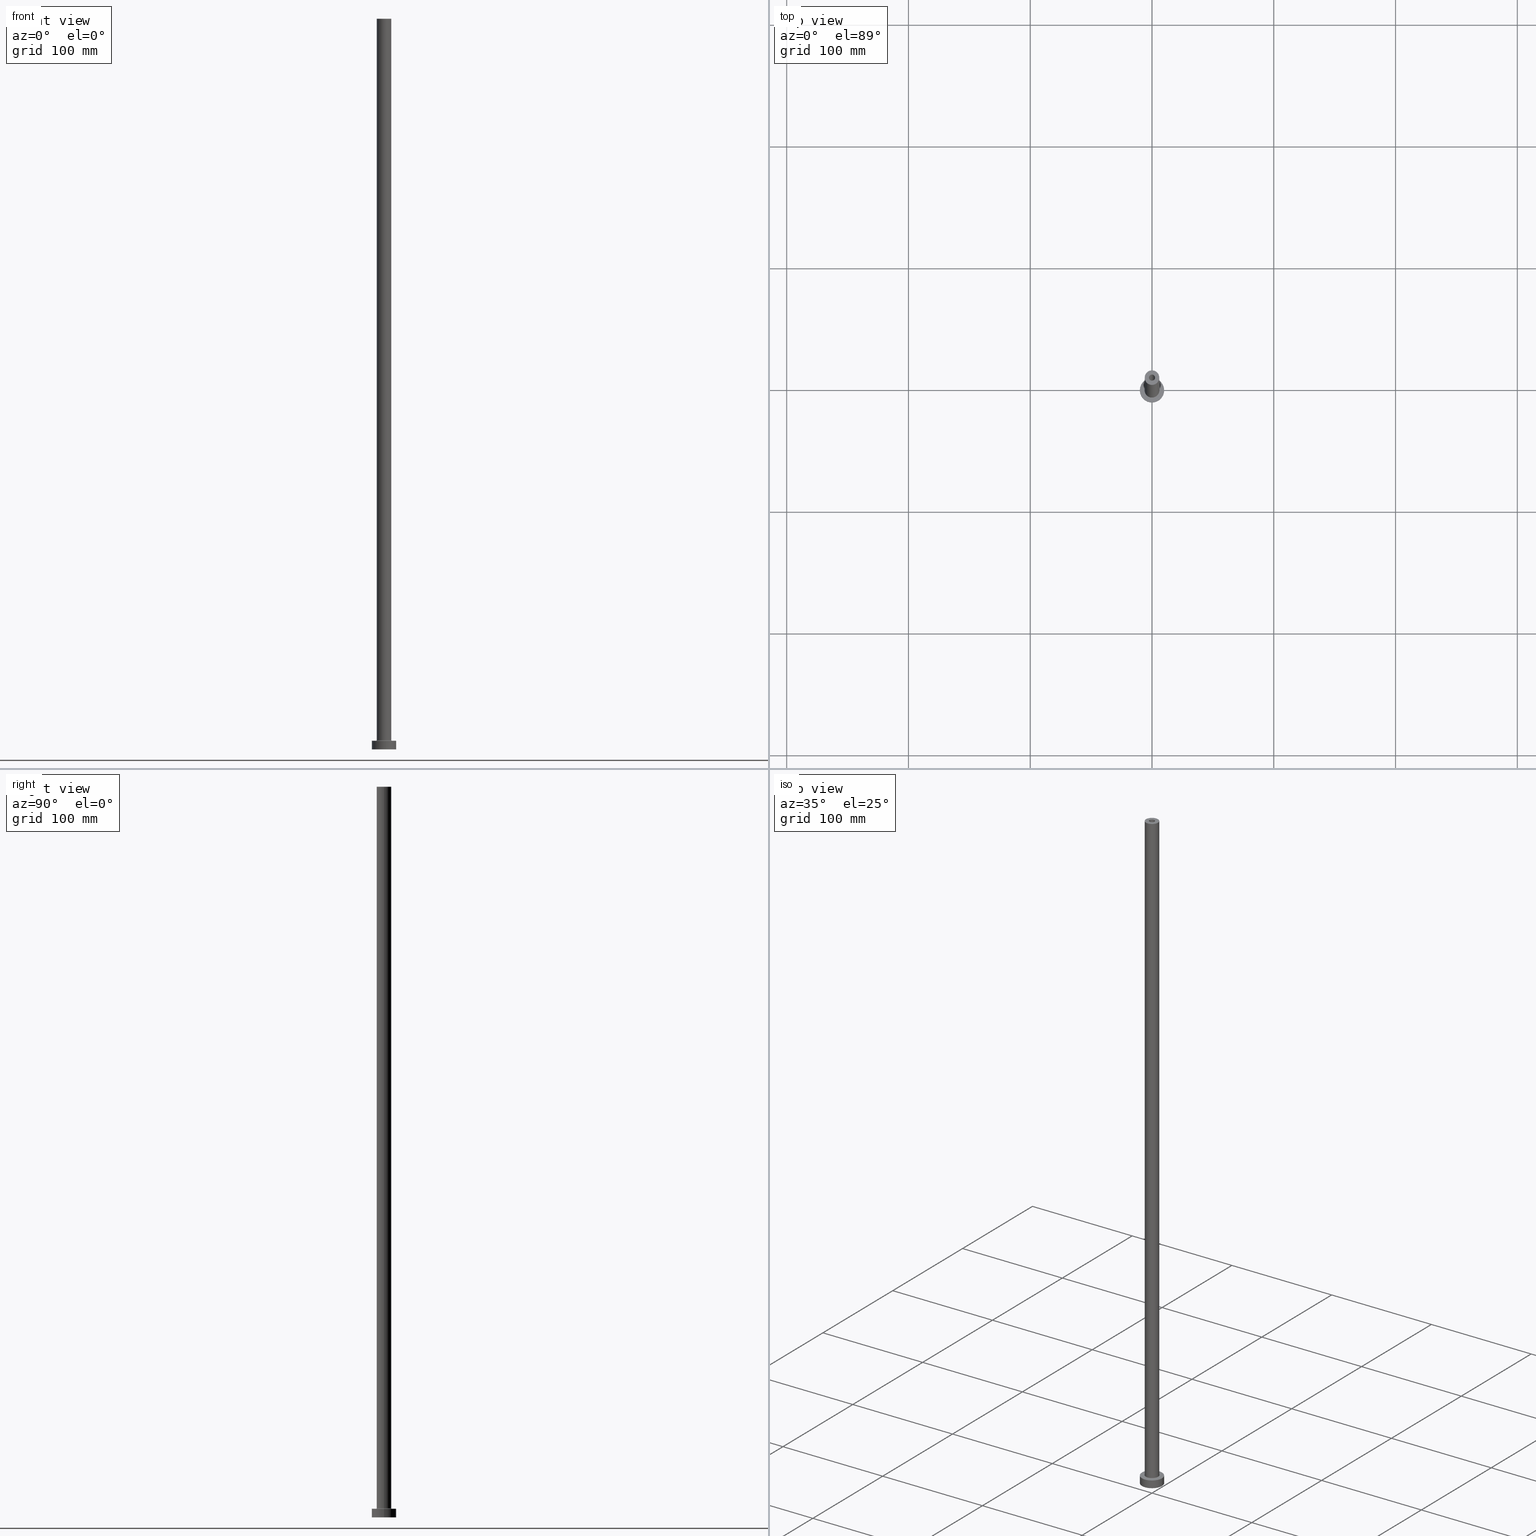
[diagram: canonical four-view strip — front | top / right | iso, engineering-drawing reading convention]
A machine part, canonical four-view strip (front | top / right | iso — engineering-drawing reading convention). The complete STEP part file that produces these views, byte-faithful:
ISO-10303-21;
HEADER;
FILE_DESCRIPTION (( 'STEP AP203' ),
    '1' );
FILE_NAME ('65c8.STEP',
    '2023-02-13T16:44:34',
    ( '' ),
    ( '' ),
    'SwSTEP 2.0',
    'SolidWorks 2019',
    '' );
FILE_SCHEMA (( 'CONFIG_CONTROL_DESIGN' ));
ENDSEC;

DATA;
#1 = FACE_OUTER_BOUND ( 'NONE', #85, .T. ) ;
#2 = LINE ( 'NONE', #327, #193 ) ;
#3 = APPROVAL_PERSON_ORGANIZATION ( #305, #153, #448 ) ;
#4 = DIRECTION ( 'NONE',  ( 0.000000000000000000, 0.000000000000000000, 1.000000000000000000 ) ) ;
#5 = FACE_OUTER_BOUND ( 'NONE', #451, .T. ) ;
#6 = CARTESIAN_POINT ( 'NONE',  ( 2.500000000000000000, 3.061616997868383141E-16, 600.0000000000000000 ) ) ;
#7 = DIRECTION ( 'NONE',  ( 1.000000000000000000, 0.000000000000000000, -0.000000000000000000 ) ) ;
#8 = EDGE_LOOP ( 'NONE', ( #314, #12 ) ) ;
#9 = DIRECTION ( 'NONE',  ( 0.000000000000000000, 0.000000000000000000, 1.000000000000000000 ) ) ;
#10 = EDGE_CURVE ( 'NONE', #18, #82, #68, .T. ) ;
#11 = DATE_AND_TIME ( #336, #47 ) ;
#12 = ORIENTED_EDGE ( 'NONE', *, *, #187, .F. ) ;
#13 = FACE_BOUND ( 'NONE', #383, .T. ) ;
#14 = EDGE_LOOP ( 'NONE', ( #346, #125, #176, #372 ) ) ;
#15 = VECTOR ( 'NONE', #425, 1000.000000000000000 ) ;
#16 = AXIS2_PLACEMENT_3D ( 'NONE', #81, #368, #272 ) ;
#17 = FACE_OUTER_BOUND ( 'NONE', #219, .T. ) ;
#18 = VERTEX_POINT ( 'NONE', #136 ) ;
#19 = ADVANCED_FACE ( 'NONE', ( #144 ), #415, .F. ) ;
#20 = CARTESIAN_POINT ( 'NONE',  ( -6.000000000000000888, 0.000000000000000000, 600.0000000000000000 ) ) ;
#21 = PERSON_AND_ORGANIZATION ( #151, #234 ) ;
#22 = DIRECTION ( 'NONE',  ( -1.000000000000000000, 0.000000000000000000, 0.000000000000000000 ) ) ;
#23 = CARTESIAN_POINT ( 'NONE',  ( 0.000000000000000000, 0.000000000000000000, 600.0000000000000000 ) ) ;
#24 = AXIS2_PLACEMENT_3D ( 'NONE', #253, #388, #56 ) ;
#25 = COORDINATED_UNIVERSAL_TIME_OFFSET ( 1, 0, .AHEAD. ) ;
#26 = VERTEX_POINT ( 'NONE', #350 ) ;
#27 = ADVANCED_FACE ( 'NONE', ( #356 ), #209, .T. ) ;
#28 = CALENDAR_DATE ( 2023, 13, 2 ) ;
#29 = ORIENTED_EDGE ( 'NONE', *, *, #340, .T. ) ;
#30 = CIRCLE ( 'NONE', #227, 2.500000000000000000 ) ;
#31 = DIRECTION ( 'NONE',  ( 1.000000000000000000, 0.000000000000000000, 0.000000000000000000 ) ) ;
#32 = ORIENTED_EDGE ( 'NONE', *, *, #179, .F. ) ;
#33 = ADVANCED_FACE ( 'NONE', ( #98 ), #59, .F. ) ;
#34 = DATE_AND_TIME ( #291, #259 ) ;
#35 = CARTESIAN_POINT ( 'NONE',  ( 0.000000000000000000, 0.000000000000000000, 7.499999999999951150 ) ) ;
#36 = MANIFOLD_SOLID_BREP ( 'Odebrat vysunut�m4', #375 ) ;
#37 = CARTESIAN_POINT ( 'NONE',  ( 6.000000000000000888, 7.347880794884120722E-16, 600.0000000000000000 ) ) ;
#38 = AXIS2_PLACEMENT_3D ( 'NONE', #110, #4, #42 ) ;
#39 = CARTESIAN_POINT ( 'NONE',  ( -2.500000000000000000, 0.000000000000000000, 554.9999999999998863 ) ) ;
#40 = EDGE_CURVE ( 'NONE', #140, #130, #132, .T. ) ;
#41 = SECURITY_CLASSIFICATION ( '', '', #120 ) ;
#42 = DIRECTION ( 'NONE',  ( 1.000000000000000000, 0.000000000000000000, 0.000000000000000000 ) ) ;
#43 = CARTESIAN_POINT ( 'NONE',  ( 0.000000000000000000, 0.000000000000000000, 7.499999999999951150 ) ) ;
#44 = CIRCLE ( 'NONE', #404, 2.500000000000000000 ) ;
#45 = FACE_OUTER_BOUND ( 'NONE', #256, .T. ) ;
#46 = EDGE_CURVE ( 'NONE', #411, #183, #260, .T. ) ;
#47 = LOCAL_TIME ( 17, 44, 34.00000000000000000, #122 ) ;
#48 = DIRECTION ( 'NONE',  ( -1.000000000000000000, 0.000000000000000000, 0.000000000000000000 ) ) ;
#49 = ORIENTED_EDGE ( 'NONE', *, *, #10, .T. ) ;
#50 = DIRECTION ( 'NONE',  ( 1.000000000000000000, 0.000000000000000000, -0.000000000000000000 ) ) ;
#51 = CARTESIAN_POINT ( 'NONE',  ( 0.000000000000000000, 0.000000000000000000, 600.0000000000000000 ) ) ;
#52 = ORIENTED_EDGE ( 'NONE', *, *, #407, .F. ) ;
#53 = TOROIDAL_SURFACE ( 'NONE', #201, 6.500000000000000888, 0.5000000000000000000 ) ;
#54 = EDGE_CURVE ( 'NONE', #161, #165, #2, .T. ) ;
#55 = CYLINDRICAL_SURFACE ( 'NONE', #114, 10.00000000000000000 ) ;
#56 = DIRECTION ( 'NONE',  ( -1.000000000000000000, 0.000000000000000000, 0.000000000000000000 ) ) ;
#57 = ORIENTED_EDGE ( 'NONE', *, *, #187, .T. ) ;
#58 = CYLINDRICAL_SURFACE ( 'NONE', #24, 2.649999999999999911 ) ;
#59 = CYLINDRICAL_SURFACE ( 'NONE', #102, 2.500000000000000000 ) ;
#60 = CIRCLE ( 'NONE', #301, 6.000000000000000888 ) ;
#61 = PRODUCT_RELATED_PRODUCT_CATEGORY ( 'detail', '', ( #108 ) ) ;
#62 = EDGE_LOOP ( 'NONE', ( #424, #306, #420, #32 ) ) ;
#63 =( LENGTH_UNIT ( ) NAMED_UNIT ( * ) SI_UNIT ( .MILLI., .METRE. ) );
#64 = ORIENTED_EDGE ( 'NONE', *, *, #46, .F. ) ;
#65 = DIRECTION ( 'NONE',  ( 1.000000000000000000, 0.000000000000000000, 0.000000000000000000 ) ) ;
#66 = ORIENTED_EDGE ( 'NONE', *, *, #126, .F. ) ;
#67 = EDGE_CURVE ( 'NONE', #183, #26, #295, .T. ) ;
#68 = CIRCLE ( 'NONE', #390, 6.500000000000000888 ) ;
#69 = APPROVAL_ROLE ( '' ) ;
#70 = DIRECTION ( 'NONE',  ( 0.000000000000000000, 0.000000000000000000, 1.000000000000000000 ) ) ;
#71 = LOCAL_TIME ( 17, 44, 34.00000000000000000, #221 ) ;
#72 = CARTESIAN_POINT ( 'NONE',  ( 0.000000000000000000, 0.000000000000000000, 600.0000000000000000 ) ) ;
#73 = FACE_OUTER_BOUND ( 'NONE', #148, .T. ) ;
#74 = AXIS2_PLACEMENT_3D ( 'NONE', #397, #77, #431 ) ;
#75 = AXIS2_PLACEMENT_3D ( 'NONE', #197, #343, #274 ) ;
#76 = ADVANCED_FACE ( 'NONE', ( #1 ), #430, .F. ) ;
#77 = DIRECTION ( 'NONE',  ( 0.000000000000000000, 0.000000000000000000, 1.000000000000000000 ) ) ;
#78 = PLANE ( 'NONE',  #412 ) ;
#79 = CARTESIAN_POINT ( 'NONE',  ( 0.000000000000000000, 0.000000000000000000, 600.0000000000000000 ) ) ;
#80 = VECTOR ( 'NONE', #222, 1000.000000000000000 ) ;
#81 = CARTESIAN_POINT ( 'NONE',  ( 0.000000000000000000, 0.000000000000000000, 0.000000000000000000 ) ) ;
#82 = VERTEX_POINT ( 'NONE', #392 ) ;
#83 = PRODUCT_DEFINITION_FORMATION_WITH_SPECIFIED_SOURCE ( 'LIBOVOLN�', '', #108, .NOT_KNOWN. ) ;
#84 = CARTESIAN_POINT ( 'NONE',  ( 0.000000000000000000, 0.000000000000000000, 7.000000000000000000 ) ) ;
#85 = EDGE_LOOP ( 'NONE', ( #311, #284, #128, #88 ) ) ;
#86 = ADVANCED_FACE ( 'NONE', ( #5 ), #53, .F. ) ;
#87 = CYLINDRICAL_SURFACE ( 'NONE', #398, 6.000000000000000888 ) ;
#88 = ORIENTED_EDGE ( 'NONE', *, *, #414, .F. ) ;
#89 = CARTESIAN_POINT ( 'NONE',  ( 10.00000000000000000, 1.224646799147353256E-15, 0.000000000000000000 ) ) ;
#90 = VECTOR ( 'NONE', #300, 1000.000000000000000 ) ;
#91 = PERSON_AND_ORGANIZATION_ROLE ( 'creator' ) ;
#92 = ORIENTED_EDGE ( 'NONE', *, *, #263, .T. ) ;
#93 =( NAMED_UNIT ( * ) PLANE_ANGLE_UNIT ( ) SI_UNIT ( $, .RADIAN. ) );
#94 = CIRCLE ( 'NONE', #223, 10.00000000000000000 ) ;
#95 = DESIGN_CONTEXT ( 'detailed design', #262, 'design' ) ;
#96 = COORDINATED_UNIVERSAL_TIME_OFFSET ( 1, 0, .AHEAD. ) ;
#97 = ORIENTED_EDGE ( 'NONE', *, *, #142, .F. ) ;
#98 = FACE_OUTER_BOUND ( 'NONE', #101, .T. ) ;
#99 = EDGE_CURVE ( 'NONE', #269, #26, #326, .T. ) ;
#100 = DIRECTION ( 'NONE',  ( 1.000000000000000000, 0.000000000000000000, 0.000000000000000000 ) ) ;
#101 = EDGE_LOOP ( 'NONE', ( #92, #252, #290, #64 ) ) ;
#102 = AXIS2_PLACEMENT_3D ( 'NONE', #23, #330, #186 ) ;
#103 = APPROVAL_DATE_TIME ( #177, #395 ) ;
#104 = CARTESIAN_POINT ( 'NONE',  ( 0.000000000000000000, 0.000000000000000000, 7.000000000000000000 ) ) ;
#105 = EDGE_CURVE ( 'NONE', #165, #374, #239, .T. ) ;
#106 = ORIENTED_EDGE ( 'NONE', *, *, #354, .F. ) ;
#107 = DATE_AND_TIME ( #423, #71 ) ;
#108 = PRODUCT ( '65c8', '65c8', '', ( #251 ) ) ;
#109 = DIRECTION ( 'NONE',  ( -0.000000000000000000, -0.000000000000000000, -1.000000000000000000 ) ) ;
#110 = CARTESIAN_POINT ( 'NONE',  ( 0.000000000000000000, 0.000000000000000000, 554.9999999999998863 ) ) ;
#111 = CARTESIAN_POINT ( 'NONE',  ( -2.649999999999999911, 0.000000000000000000, 0.000000000000000000 ) ) ;
#112 = EDGE_CURVE ( 'NONE', #130, #352, #189, .T. ) ;
#113 = CARTESIAN_POINT ( 'NONE',  ( -2.649999999999999911, 0.000000000000000000, 554.9999999999998863 ) ) ;
#114 = AXIS2_PLACEMENT_3D ( 'NONE', #304, #121, #48 ) ;
#115 = FACE_BOUND ( 'NONE', #441, .T. ) ;
#116 = ADVANCED_BREP_SHAPE_REPRESENTATION ( '65c8', ( #36, #280 ), #159 ) ;
#117 = CIRCLE ( 'NONE', #184, 10.00000000000000000 ) ;
#118 = DIRECTION ( 'NONE',  ( 1.000000000000000000, 0.000000000000000000, 0.000000000000000000 ) ) ;
#119 = CC_DESIGN_PERSON_AND_ORGANIZATION_ASSIGNMENT ( #21, #170, ( #83 ) ) ;
#120 = SECURITY_CLASSIFICATION_LEVEL ( 'unclassified' ) ;
#121 = DIRECTION ( 'NONE',  ( -0.000000000000000000, -0.000000000000000000, -1.000000000000000000 ) ) ;
#122 = COORDINATED_UNIVERSAL_TIME_OFFSET ( 1, 0, .AHEAD. ) ;
#123 = FACE_BOUND ( 'NONE', #334, .T. ) ;
#124 = AXIS2_PLACEMENT_3D ( 'NONE', #84, #236, #401 ) ;
#125 = ORIENTED_EDGE ( 'NONE', *, *, #418, .F. ) ;
#126 = EDGE_CURVE ( 'NONE', #26, #183, #30, .T. ) ;
#127 = DIRECTION ( 'NONE',  ( 1.224646799147353207E-16, 1.000000000000000000, -0.000000000000000000 ) ) ;
#128 = ORIENTED_EDGE ( 'NONE', *, *, #386, .F. ) ;
#129 = DIRECTION ( 'NONE',  ( -1.000000000000000000, 0.000000000000000000, 0.000000000000000000 ) ) ;
#130 = VERTEX_POINT ( 'NONE', #363 ) ;
#131 = DIRECTION ( 'NONE',  ( -0.000000000000000000, -0.000000000000000000, -1.000000000000000000 ) ) ;
#132 = CIRCLE ( 'NONE', #347, 2.649999999999999911 ) ;
#133 = ORIENTED_EDGE ( 'NONE', *, *, #426, .F. ) ;
#134 = AXIS2_PLACEMENT_3D ( 'NONE', #338, #335, #341 ) ;
#135 = DIRECTION ( 'NONE',  ( 0.000000000000000000, 0.000000000000000000, 1.000000000000000000 ) ) ;
#136 = CARTESIAN_POINT ( 'NONE',  ( -6.500000000000000888, 7.960204194457796463E-16, 6.999999999999975131 ) ) ;
#137 = EDGE_CURVE ( 'NONE', #161, #198, #60, .T. ) ;
#138 = APPROVAL_ROLE ( '' ) ;
#139 = ORIENTED_EDGE ( 'NONE', *, *, #354, .T. ) ;
#140 = VERTEX_POINT ( 'NONE', #113 ) ;
#141 = AXIS2_PLACEMENT_3D ( 'NONE', #43, #155, #192 ) ;
#142 = EDGE_CURVE ( 'NONE', #417, #454, #294, .T. ) ;
#143 = DIRECTION ( 'NONE',  ( -0.000000000000000000, -0.000000000000000000, -1.000000000000000000 ) ) ;
#144 = FACE_OUTER_BOUND ( 'NONE', #211, .T. ) ;
#145 = CIRCLE ( 'NONE', #432, 6.000000000000000888 ) ;
#146 = PRODUCT_DEFINITION_SHAPE ( 'NONE', 'NONE',  #235 ) ;
#147 = COORDINATED_UNIVERSAL_TIME_OFFSET ( 1, 0, .AHEAD. ) ;
#148 = EDGE_LOOP ( 'NONE', ( #246, #178 ) ) ;
#149 = DIRECTION ( 'NONE',  ( 0.000000000000000000, 0.000000000000000000, 1.000000000000000000 ) ) ;
#150 = CIRCLE ( 'NONE', #74, 2.649999999999999911 ) ;
#151 = PERSON ( 'NEUR�EN�', 'NEUR�EN�', 'NEUR�EN�', ('NEUR�EN�'), ('NEUR�EN�'), ('NEUR�EN�') ) ;
#152 = DIRECTION ( 'NONE',  ( 1.000000000000000000, 0.000000000000000000, 0.000000000000000000 ) ) ;
#153 = APPROVAL ( #208, 'NEUR�EN�' ) ;
#154 = CIRCLE ( 'NONE', #369, 6.500000000000000888 ) ;
#155 = DIRECTION ( 'NONE',  ( 0.000000000000000000, 0.000000000000000000, 1.000000000000000000 ) ) ;
#156 = CARTESIAN_POINT ( 'NONE',  ( 0.000000000000000000, 0.000000000000000000, 554.9999999999998863 ) ) ;
#157 = ADVANCED_FACE ( 'NONE', ( #264, #73 ), #230, .T. ) ;
#158 = DIRECTION ( 'NONE',  ( 1.000000000000000000, 0.000000000000000000, 0.000000000000000000 ) ) ;
#159 =( GEOMETRIC_REPRESENTATION_CONTEXT ( 3 ) GLOBAL_UNCERTAINTY_ASSIGNED_CONTEXT ( ( #278 ) ) GLOBAL_UNIT_ASSIGNED_CONTEXT ( ( #63, #93, #382 ) ) REPRESENTATION_CONTEXT ( 'NONE', 'WORKASPACE' ) );
#160 = LINE ( 'NONE', #237, #447 ) ;
#161 = VERTEX_POINT ( 'NONE', #37 ) ;
#162 = CARTESIAN_POINT ( 'NONE',  ( 0.000000000000000000, 0.000000000000000000, 554.9999999999998863 ) ) ;
#163 = DATE_TIME_ROLE ( 'classification_date' ) ;
#164 = DIRECTION ( 'NONE',  ( 1.000000000000000000, 0.000000000000000000, 0.000000000000000000 ) ) ;
#165 = VERTEX_POINT ( 'NONE', #298 ) ;
#166 = AXIS2_PLACEMENT_3D ( 'NONE', #210, #216, #100 ) ;
#167 = DIRECTION ( 'NONE',  ( -0.000000000000000000, -0.000000000000000000, -1.000000000000000000 ) ) ;
#168 = VERTEX_POINT ( 'NONE', #111 ) ;
#169 = DIRECTION ( 'NONE',  ( 0.000000000000000000, 0.000000000000000000, 1.000000000000000000 ) ) ;
#170 = PERSON_AND_ORGANIZATION_ROLE ( 'design_supplier' ) ;
#171 = ORIENTED_EDGE ( 'NONE', *, *, #340, .F. ) ;
#172 = AXIS2_PLACEMENT_3D ( 'NONE', #72, #225, #358 ) ;
#173 = SHAPE_DEFINITION_REPRESENTATION ( #146, #116 ) ;
#174 = ORIENTED_EDGE ( 'NONE', *, *, #292, .F. ) ;
#175 = CIRCLE ( 'NONE', #406, 0.5000000000000004441 ) ;
#176 = ORIENTED_EDGE ( 'NONE', *, *, #292, .T. ) ;
#177 = DATE_AND_TIME ( #28, #243 ) ;
#178 = ORIENTED_EDGE ( 'NONE', *, *, #137, .T. ) ;
#179 = EDGE_CURVE ( 'NONE', #140, #168, #261, .T. ) ;
#180 = CARTESIAN_POINT ( 'NONE',  ( -6.000000000000000888, 0.000000000000000000, 7.499999999999951150 ) ) ;
#181 = DIRECTION ( 'NONE',  ( -0.000000000000000000, -0.000000000000000000, -1.000000000000000000 ) ) ;
#182 = CARTESIAN_POINT ( 'NONE',  ( 0.000000000000000000, 0.000000000000000000, 0.000000000000000000 ) ) ;
#183 = VERTEX_POINT ( 'NONE', #39 ) ;
#184 = AXIS2_PLACEMENT_3D ( 'NONE', #182, #355, #65 ) ;
#185 = DATE_TIME_ROLE ( 'creation_date' ) ;
#186 = DIRECTION ( 'NONE',  ( -1.000000000000000000, 0.000000000000000000, 0.000000000000000000 ) ) ;
#187 = EDGE_CURVE ( 'NONE', #130, #140, #150, .T. ) ;
#188 = DIRECTION ( 'NONE',  ( 1.000000000000000000, 0.000000000000000000, 0.000000000000000000 ) ) ;
#189 = LINE ( 'NONE', #229, #80 ) ;
#190 = DIRECTION ( 'NONE',  ( 0.000000000000000000, 0.000000000000000000, 1.000000000000000000 ) ) ;
#191 = ADVANCED_FACE ( 'NONE', ( #115, #265 ), #78, .T. ) ;
#192 = DIRECTION ( 'NONE',  ( 1.000000000000000000, 0.000000000000000000, 0.000000000000000000 ) ) ;
#193 = VECTOR ( 'NONE', #329, 1000.000000000000000 ) ;
#194 = AXIS2_PLACEMENT_3D ( 'NONE', #51, #266, #437 ) ;
#195 = DIRECTION ( 'NONE',  ( -1.000000000000000000, 0.000000000000000000, 0.000000000000000000 ) ) ;
#196 = ORIENTED_EDGE ( 'NONE', *, *, #426, .T. ) ;
#197 = CARTESIAN_POINT ( 'NONE',  ( 0.000000000000000000, 0.000000000000000000, 0.000000000000000000 ) ) ;
#198 = VERTEX_POINT ( 'NONE', #20 ) ;
#199 = CARTESIAN_POINT ( 'NONE',  ( 10.00000000000000000, 1.224646799147353256E-15, 7.000000000000000000 ) ) ;
#200 = ADVANCED_FACE ( 'NONE', ( #123, #333 ), #240, .F. ) ;
#201 = AXIS2_PLACEMENT_3D ( 'NONE', #427, #394, #188 ) ;
#202 = FACE_OUTER_BOUND ( 'NONE', #14, .T. ) ;
#203 = CIRCLE ( 'NONE', #75, 2.649999999999999911 ) ;
#204 = EDGE_LOOP ( 'NONE', ( #293, #380, #339, #174 ) ) ;
#205 = DIRECTION ( 'NONE',  ( 1.000000000000000000, 0.000000000000000000, 0.000000000000000000 ) ) ;
#206 = EDGE_CURVE ( 'NONE', #269, #411, #44, .T. ) ;
#207 = DIRECTION ( 'NONE',  ( 0.000000000000000000, 0.000000000000000000, 1.000000000000000000 ) ) ;
#208 = APPROVAL_STATUS ( 'not_yet_approved' ) ;
#209 = CYLINDRICAL_SURFACE ( 'NONE', #247, 6.000000000000000888 ) ;
#210 = CARTESIAN_POINT ( 'NONE',  ( 0.000000000000000000, 0.000000000000000000, 0.000000000000000000 ) ) ;
#211 = EDGE_LOOP ( 'NONE', ( #436, #57, #403, #29 ) ) ;
#212 = CC_DESIGN_APPROVAL ( #395, ( #235 ) ) ;
#213 = CARTESIAN_POINT ( 'NONE',  ( 10.00000000000000000, 1.224646799147353256E-15, 7.000000000000000000 ) ) ;
#214 = EDGE_CURVE ( 'NONE', #374, #165, #455, .T. ) ;
#215 = ORIENTED_EDGE ( 'NONE', *, *, #429, .F. ) ;
#216 = DIRECTION ( 'NONE',  ( 0.000000000000000000, 0.000000000000000000, 1.000000000000000000 ) ) ;
#217 = EDGE_LOOP ( 'NONE', ( #422, #458, #238, #66 ) ) ;
#218 = CARTESIAN_POINT ( 'NONE',  ( 0.000000000000000000, 0.000000000000000000, 7.000000000000000000 ) ) ;
#219 = EDGE_LOOP ( 'NONE', ( #106, #52 ) ) ;
#220 = AXIS2_PLACEMENT_3D ( 'NONE', #162, #271, #408 ) ;
#221 = COORDINATED_UNIVERSAL_TIME_OFFSET ( 1, 0, .AHEAD. ) ;
#222 = DIRECTION ( 'NONE',  ( 0.000000000000000000, 0.000000000000000000, -1.000000000000000000 ) ) ;
#223 = AXIS2_PLACEMENT_3D ( 'NONE', #277, #345, #452 ) ;
#224 = ADVANCED_FACE ( 'NONE', ( #444 ), #55, .T. ) ;
#225 = DIRECTION ( 'NONE',  ( 0.000000000000000000, 0.000000000000000000, 1.000000000000000000 ) ) ;
#226 = CARTESIAN_POINT ( 'NONE',  ( -2.649999999999999911, 0.000000000000000000, 562.4953318805773961 ) ) ;
#227 = AXIS2_PLACEMENT_3D ( 'NONE', #156, #70, #152 ) ;
#228 = CIRCLE ( 'NONE', #16, 2.649999999999999911 ) ;
#229 = CARTESIAN_POINT ( 'NONE',  ( 2.649999999999999911, 3.245314017740485962E-16, 562.4953318805773961 ) ) ;
#230 = PLANE ( 'NONE',  #172 ) ;
#231 = DIRECTION ( 'NONE',  ( 0.000000000000000000, 0.000000000000000000, 1.000000000000000000 ) ) ;
#232 = PLANE ( 'NONE',  #297 ) ;
#233 = ORIENTED_EDGE ( 'NONE', *, *, #206, .F. ) ;
#234 = ORGANIZATION ( 'NEUR�EN�', 'NEUR�EN�', '' ) ;
#235 = PRODUCT_DEFINITION ( 'NEZN�M�', '', #83, #95 ) ;
#236 = DIRECTION ( 'NONE',  ( -0.000000000000000000, -0.000000000000000000, -1.000000000000000000 ) ) ;
#237 = CARTESIAN_POINT ( 'NONE',  ( -6.000000000000000888, 0.000000000000000000, 600.0000000000000000 ) ) ;
#238 = ORIENTED_EDGE ( 'NONE', *, *, #46, .T. ) ;
#239 = CIRCLE ( 'NONE', #446, 6.000000000000000888 ) ;
#240 = PLANE ( 'NONE',  #220 ) ;
#241 = ORIENTED_EDGE ( 'NONE', *, *, #414, .T. ) ;
#242 = EDGE_CURVE ( 'NONE', #352, #168, #203, .T. ) ;
#243 = LOCAL_TIME ( 17, 44, 34.00000000000000000, #25 ) ;
#244 = DIRECTION ( 'NONE',  ( 0.000000000000000000, -1.000000000000000000, 0.000000000000000000 ) ) ;
#245 = CARTESIAN_POINT ( 'NONE',  ( 0.000000000000000000, 0.000000000000000000, 600.0000000000000000 ) ) ;
#246 = ORIENTED_EDGE ( 'NONE', *, *, #418, .T. ) ;
#247 = AXIS2_PLACEMENT_3D ( 'NONE', #324, #109, #22 ) ;
#248 = EDGE_LOOP ( 'NONE', ( #133, #215, #287, #139 ) ) ;
#249 = EDGE_CURVE ( 'NONE', #316, #417, #331, .T. ) ;
#250 = APPROVAL_PERSON_ORGANIZATION ( #419, #395, #138 ) ;
#251 = MECHANICAL_CONTEXT ( 'NONE', #296, 'mechanical' ) ;
#252 = ORIENTED_EDGE ( 'NONE', *, *, #99, .T. ) ;
#253 = CARTESIAN_POINT ( 'NONE',  ( 0.000000000000000000, 0.000000000000000000, 562.4953318805773961 ) ) ;
#254 = DIRECTION ( 'NONE',  ( 0.000000000000000000, 0.000000000000000000, -1.000000000000000000 ) ) ;
#255 = PERSON_AND_ORGANIZATION ( #151, #234 ) ;
#256 = EDGE_LOOP ( 'NONE', ( #461, #196, #370, #97 ) ) ;
#257 = AXIS2_PLACEMENT_3D ( 'NONE', #308, #127, #402 ) ;
#258 = ADVANCED_FACE ( 'NONE', ( #405 ), #366, .F. ) ;
#259 = LOCAL_TIME ( 17, 44, 34.00000000000000000, #147 ) ;
#260 = LINE ( 'NONE', #325, #360 ) ;
#261 = LINE ( 'NONE', #226, #90 ) ;
#262 = APPLICATION_CONTEXT ( 'configuration controlled 3d designs of mechanical parts and assemblies' ) ;
#263 = EDGE_CURVE ( 'NONE', #411, #269, #381, .T. ) ;
#264 = FACE_BOUND ( 'NONE', #279, .T. ) ;
#265 = FACE_OUTER_BOUND ( 'NONE', #342, .T. ) ;
#266 = DIRECTION ( 'NONE',  ( 0.000000000000000000, 0.000000000000000000, 1.000000000000000000 ) ) ;
#267 = PERSON_AND_ORGANIZATION ( #151, #234 ) ;
#268 = DIRECTION ( 'NONE',  ( 0.000000000000000000, 0.000000000000000000, -1.000000000000000000 ) ) ;
#269 = VERTEX_POINT ( 'NONE', #310 ) ;
#270 = ADVANCED_FACE ( 'NONE', ( #45 ), #409, .T. ) ;
#271 = DIRECTION ( 'NONE',  ( 0.000000000000000000, 0.000000000000000000, 1.000000000000000000 ) ) ;
#272 = DIRECTION ( 'NONE',  ( 1.000000000000000000, 0.000000000000000000, 0.000000000000000000 ) ) ;
#273 = CC_DESIGN_PERSON_AND_ORGANIZATION_ASSIGNMENT ( #391, #460, ( #235 ) ) ;
#274 = DIRECTION ( 'NONE',  ( 1.000000000000000000, 0.000000000000000000, 0.000000000000000000 ) ) ;
#275 = VERTEX_POINT ( 'NONE', #89 ) ;
#276 = AXIS2_PLACEMENT_3D ( 'NONE', #312, #169, #205 ) ;
#277 = CARTESIAN_POINT ( 'NONE',  ( 0.000000000000000000, 0.000000000000000000, 7.000000000000000000 ) ) ;
#278 = UNCERTAINTY_MEASURE_WITH_UNIT (LENGTH_MEASURE( 1.000000000000000082E-05 ), #63, 'distance_accuracy_value', 'NONE');
#279 = EDGE_LOOP ( 'NONE', ( #377, #233 ) ) ;
#280 = AXIS2_PLACEMENT_3D ( 'NONE', #315, #135, #281 ) ;
#281 = DIRECTION ( 'NONE',  ( 1.000000000000000000, 0.000000000000000000, 0.000000000000000000 ) ) ;
#282 = ORIENTED_EDGE ( 'NONE', *, *, #249, .T. ) ;
#283 = CARTESIAN_POINT ( 'NONE',  ( -2.500000000000000000, 0.000000000000000000, 600.0000000000000000 ) ) ;
#284 = ORIENTED_EDGE ( 'NONE', *, *, #328, .T. ) ;
#285 = APPLICATION_PROTOCOL_DEFINITION ( 'international standard', 'config_control_design', 1994, #262 ) ;
#286 = VECTOR ( 'NONE', #299, 1000.000000000000000 ) ;
#287 = ORIENTED_EDGE ( 'NONE', *, *, #142, .T. ) ;
#288 = CC_DESIGN_APPROVAL ( #400, ( #83 ) ) ;
#289 = CARTESIAN_POINT ( 'NONE',  ( -10.00000000000000000, 0.000000000000000000, 0.000000000000000000 ) ) ;
#290 = ORIENTED_EDGE ( 'NONE', *, *, #67, .F. ) ;
#291 = CALENDAR_DATE ( 2023, 13, 2 ) ;
#292 = EDGE_CURVE ( 'NONE', #198, #374, #160, .T. ) ;
#293 = ORIENTED_EDGE ( 'NONE', *, *, #137, .F. ) ;
#294 = LINE ( 'NONE', #399, #15 ) ;
#295 = CIRCLE ( 'NONE', #38, 2.500000000000000000 ) ;
#296 = APPLICATION_CONTEXT ( 'configuration controlled 3d designs of mechanical parts and assemblies' ) ;
#297 = AXIS2_PLACEMENT_3D ( 'NONE', #435, #371, #50 ) ;
#298 = CARTESIAN_POINT ( 'NONE',  ( 6.000000000000000888, 7.347880794884120722E-16, 7.499999999999951150 ) ) ;
#299 = DIRECTION ( 'NONE',  ( 0.000000000000000000, 0.000000000000000000, -1.000000000000000000 ) ) ;
#300 = DIRECTION ( 'NONE',  ( 0.000000000000000000, 0.000000000000000000, -1.000000000000000000 ) ) ;
#301 = AXIS2_PLACEMENT_3D ( 'NONE', #359, #149, #428 ) ;
#302 = DIRECTION ( 'NONE',  ( -0.000000000000000000, -0.000000000000000000, -1.000000000000000000 ) ) ;
#303 = ADVANCED_FACE ( 'NONE', ( #13, #17 ), #232, .F. ) ;
#304 = CARTESIAN_POINT ( 'NONE',  ( 0.000000000000000000, 0.000000000000000000, 7.000000000000000000 ) ) ;
#305 = PERSON_AND_ORGANIZATION ( #151, #234 ) ;
#306 = ORIENTED_EDGE ( 'NONE', *, *, #112, .T. ) ;
#307 = AXIS2_PLACEMENT_3D ( 'NONE', #440, #268, #195 ) ;
#308 = CARTESIAN_POINT ( 'NONE',  ( -6.500000000000000888, 7.960204194457796463E-16, 7.499999999999951150 ) ) ;
#309 = CC_DESIGN_APPROVAL ( #153, ( #41 ) ) ;
#310 = CARTESIAN_POINT ( 'NONE',  ( 2.500000000000000000, 3.061616997868383141E-16, 600.0000000000000000 ) ) ;
#311 = ORIENTED_EDGE ( 'NONE', *, *, #214, .F. ) ;
#312 = CARTESIAN_POINT ( 'NONE',  ( 0.000000000000000000, 0.000000000000000000, 7.499999999999951150 ) ) ;
#313 = APPLICATION_PROTOCOL_DEFINITION ( 'international standard', 'config_control_design', 1994, #296 ) ;
#314 = ORIENTED_EDGE ( 'NONE', *, *, #40, .F. ) ;
#315 = CARTESIAN_POINT ( 'NONE',  ( 0.000000000000000000, 0.000000000000000000, 0.000000000000000000 ) ) ;
#316 = VERTEX_POINT ( 'NONE', #199 ) ;
#317 = CC_DESIGN_DATE_AND_TIME_ASSIGNMENT ( #11, #163, ( #41 ) ) ;
#318 = DIRECTION ( 'NONE',  ( 0.000000000000000000, 0.000000000000000000, -1.000000000000000000 ) ) ;
#319 = ORIENTED_EDGE ( 'NONE', *, *, #10, .F. ) ;
#320 = CARTESIAN_POINT ( 'NONE',  ( 6.500000000000000888, 0.000000000000000000, 7.499999999999951150 ) ) ;
#321 = ORIENTED_EDGE ( 'NONE', *, *, #328, .F. ) ;
#322 = CC_DESIGN_PERSON_AND_ORGANIZATION_ASSIGNMENT ( #450, #385, ( #108 ) ) ;
#323 = DIRECTION ( 'NONE',  ( 1.000000000000000000, 0.000000000000000000, 0.000000000000000000 ) ) ;
#324 = CARTESIAN_POINT ( 'NONE',  ( 0.000000000000000000, 0.000000000000000000, 600.0000000000000000 ) ) ;
#325 = CARTESIAN_POINT ( 'NONE',  ( -2.500000000000000000, 0.000000000000000000, 600.0000000000000000 ) ) ;
#326 = LINE ( 'NONE', #6, #286 ) ;
#327 = CARTESIAN_POINT ( 'NONE',  ( 6.000000000000000888, 7.347880794884120722E-16, 600.0000000000000000 ) ) ;
#328 = EDGE_CURVE ( 'NONE', #374, #18, #361, .T. ) ;
#329 = DIRECTION ( 'NONE',  ( -0.000000000000000000, -0.000000000000000000, -1.000000000000000000 ) ) ;
#330 = DIRECTION ( 'NONE',  ( 0.000000000000000000, 0.000000000000000000, -1.000000000000000000 ) ) ;
#331 = CIRCLE ( 'NONE', #134, 10.00000000000000000 ) ;
#332 = CC_DESIGN_PERSON_AND_ORGANIZATION_ASSIGNMENT ( #267, #367, ( #41 ) ) ;
#333 = FACE_OUTER_BOUND ( 'NONE', #8, .T. ) ;
#334 = EDGE_LOOP ( 'NONE', ( #445, #344 ) ) ;
#335 = DIRECTION ( 'NONE',  ( 0.000000000000000000, 0.000000000000000000, 1.000000000000000000 ) ) ;
#336 = CALENDAR_DATE ( 2023, 13, 2 ) ;
#337 = ORIENTED_EDGE ( 'NONE', *, *, #429, .T. ) ;
#338 = CARTESIAN_POINT ( 'NONE',  ( 0.000000000000000000, 0.000000000000000000, 7.000000000000000000 ) ) ;
#339 = ORIENTED_EDGE ( 'NONE', *, *, #105, .T. ) ;
#340 = EDGE_CURVE ( 'NONE', #168, #352, #228, .T. ) ;
#341 = DIRECTION ( 'NONE',  ( 1.000000000000000000, 0.000000000000000000, 0.000000000000000000 ) ) ;
#342 = EDGE_LOOP ( 'NONE', ( #337, #282 ) ) ;
#343 = DIRECTION ( 'NONE',  ( -0.000000000000000000, -0.000000000000000000, -1.000000000000000000 ) ) ;
#344 = ORIENTED_EDGE ( 'NONE', *, *, #126, .T. ) ;
#345 = DIRECTION ( 'NONE',  ( 0.000000000000000000, 0.000000000000000000, 1.000000000000000000 ) ) ;
#346 = ORIENTED_EDGE ( 'NONE', *, *, #54, .F. ) ;
#347 = AXIS2_PLACEMENT_3D ( 'NONE', #396, #190, #118 ) ;
#348 = ADVANCED_FACE ( 'NONE', ( #202 ), #87, .T. ) ;
#349 = APPROVAL_DATE_TIME ( #457, #153 ) ;
#350 = CARTESIAN_POINT ( 'NONE',  ( 2.500000000000000000, 3.061616997868383141E-16, 554.9999999999998863 ) ) ;
#351 = APPROVAL_STATUS ( 'not_yet_approved' ) ;
#352 = VERTEX_POINT ( 'NONE', #376 ) ;
#353 = CARTESIAN_POINT ( 'NONE',  ( 0.000000000000000000, 0.000000000000000000, 562.4953318805773961 ) ) ;
#354 = EDGE_CURVE ( 'NONE', #454, #275, #117, .T. ) ;
#355 = DIRECTION ( 'NONE',  ( 0.000000000000000000, 0.000000000000000000, 1.000000000000000000 ) ) ;
#356 = FACE_OUTER_BOUND ( 'NONE', #204, .T. ) ;
#357 = APPROVAL_STATUS ( 'not_yet_approved' ) ;
#358 = DIRECTION ( 'NONE',  ( 1.000000000000000000, 0.000000000000000000, -0.000000000000000000 ) ) ;
#359 = CARTESIAN_POINT ( 'NONE',  ( 0.000000000000000000, 0.000000000000000000, 600.0000000000000000 ) ) ;
#360 = VECTOR ( 'NONE', #364, 1000.000000000000000 ) ;
#361 = CIRCLE ( 'NONE', #257, 0.5000000000000004441 ) ;
#362 = CIRCLE ( 'NONE', #166, 10.00000000000000000 ) ;
#363 = CARTESIAN_POINT ( 'NONE',  ( 2.649999999999999911, 3.245314017740485962E-16, 554.9999999999998863 ) ) ;
#364 = DIRECTION ( 'NONE',  ( 0.000000000000000000, 0.000000000000000000, -1.000000000000000000 ) ) ;
#365 = CC_DESIGN_PERSON_AND_ORGANIZATION_ASSIGNMENT ( #410, #91, ( #83 ) ) ;
#366 = CYLINDRICAL_SURFACE ( 'NONE', #307, 2.500000000000000000 ) ;
#367 = PERSON_AND_ORGANIZATION_ROLE ( 'classification_officer' ) ;
#368 = DIRECTION ( 'NONE',  ( -0.000000000000000000, -0.000000000000000000, -1.000000000000000000 ) ) ;
#369 = AXIS2_PLACEMENT_3D ( 'NONE', #218, #143, #323 ) ;
#370 = ORIENTED_EDGE ( 'NONE', *, *, #407, .T. ) ;
#371 = DIRECTION ( 'NONE',  ( 0.000000000000000000, 0.000000000000000000, 1.000000000000000000 ) ) ;
#372 = ORIENTED_EDGE ( 'NONE', *, *, #214, .T. ) ;
#373 = CARTESIAN_POINT ( 'NONE',  ( 0.000000000000000000, 0.000000000000000000, 600.0000000000000000 ) ) ;
#374 = VERTEX_POINT ( 'NONE', #180 ) ;
#375 = CLOSED_SHELL ( 'NONE', ( #33, #378, #76, #27, #270, #224, #191, #303, #348, #157, #86, #19, #200, #258 ) ) ;
#376 = CARTESIAN_POINT ( 'NONE',  ( 2.649999999999999911, 3.245314017740485962E-16, 0.000000000000000000 ) ) ;
#377 = ORIENTED_EDGE ( 'NONE', *, *, #263, .F. ) ;
#378 = ADVANCED_FACE ( 'NONE', ( #379 ), #58, .F. ) ;
#379 = FACE_OUTER_BOUND ( 'NONE', #62, .T. ) ;
#380 = ORIENTED_EDGE ( 'NONE', *, *, #54, .T. ) ;
#381 = CIRCLE ( 'NONE', #194, 2.500000000000000000 ) ;
#382 =( NAMED_UNIT ( * ) SI_UNIT ( $, .STERADIAN. ) SOLID_ANGLE_UNIT ( ) );
#383 = EDGE_LOOP ( 'NONE', ( #171, #413 ) ) ;
#384 = VECTOR ( 'NONE', #131, 1000.000000000000000 ) ;
#385 = PERSON_AND_ORGANIZATION_ROLE ( 'design_owner' ) ;
#386 = EDGE_CURVE ( 'NONE', #82, #18, #154, .T. ) ;
#387 = DIRECTION ( 'NONE',  ( 1.000000000000000000, 0.000000000000000000, 0.000000000000000000 ) ) ;
#388 = DIRECTION ( 'NONE',  ( 0.000000000000000000, 0.000000000000000000, -1.000000000000000000 ) ) ;
#389 = DIRECTION ( 'NONE',  ( -1.000000000000000000, 0.000000000000000000, 0.000000000000000000 ) ) ;
#390 = AXIS2_PLACEMENT_3D ( 'NONE', #104, #181, #387 ) ;
#391 = PERSON_AND_ORGANIZATION ( #151, #234 ) ;
#392 = CARTESIAN_POINT ( 'NONE',  ( 6.500000000000000888, 0.000000000000000000, 6.999999999999975131 ) ) ;
#393 = APPROVAL_PERSON_ORGANIZATION ( #255, #400, #69 ) ;
#394 = DIRECTION ( 'NONE',  ( 0.000000000000000000, 0.000000000000000000, 1.000000000000000000 ) ) ;
#395 = APPROVAL ( #351, 'NEUR�EN�' ) ;
#396 = CARTESIAN_POINT ( 'NONE',  ( 0.000000000000000000, 0.000000000000000000, 554.9999999999998863 ) ) ;
#397 = CARTESIAN_POINT ( 'NONE',  ( 0.000000000000000000, 0.000000000000000000, 554.9999999999998863 ) ) ;
#398 = AXIS2_PLACEMENT_3D ( 'NONE', #373, #167, #129 ) ;
#399 = CARTESIAN_POINT ( 'NONE',  ( -10.00000000000000000, 0.000000000000000000, 7.000000000000000000 ) ) ;
#400 = APPROVAL ( #357, 'NEUR�EN�' ) ;
#401 = DIRECTION ( 'NONE',  ( -1.000000000000000000, 0.000000000000000000, 0.000000000000000000 ) ) ;
#402 = DIRECTION ( 'NONE',  ( -1.000000000000000000, 1.224646799147351482E-16, 0.000000000000000000 ) ) ;
#403 = ORIENTED_EDGE ( 'NONE', *, *, #179, .T. ) ;
#404 = AXIS2_PLACEMENT_3D ( 'NONE', #79, #231, #164 ) ;
#405 = FACE_OUTER_BOUND ( 'NONE', #217, .T. ) ;
#406 = AXIS2_PLACEMENT_3D ( 'NONE', #320, #244, #318 ) ;
#407 = EDGE_CURVE ( 'NONE', #275, #454, #362, .T. ) ;
#408 = DIRECTION ( 'NONE',  ( 1.000000000000000000, 0.000000000000000000, -0.000000000000000000 ) ) ;
#409 = CYLINDRICAL_SURFACE ( 'NONE', #124, 10.00000000000000000 ) ;
#410 = PERSON_AND_ORGANIZATION ( #151, #234 ) ;
#411 = VERTEX_POINT ( 'NONE', #283 ) ;
#412 = AXIS2_PLACEMENT_3D ( 'NONE', #442, #9, #7 ) ;
#413 = ORIENTED_EDGE ( 'NONE', *, *, #242, .F. ) ;
#414 = EDGE_CURVE ( 'NONE', #165, #82, #175, .T. ) ;
#415 = CYLINDRICAL_SURFACE ( 'NONE', #439, 2.649999999999999911 ) ;
#416 = LINE ( 'NONE', #213, #384 ) ;
#417 = VERTEX_POINT ( 'NONE', #456 ) ;
#418 = EDGE_CURVE ( 'NONE', #198, #161, #145, .T. ) ;
#419 = PERSON_AND_ORGANIZATION ( #151, #234 ) ;
#420 = ORIENTED_EDGE ( 'NONE', *, *, #242, .T. ) ;
#421 = CC_DESIGN_SECURITY_CLASSIFICATION ( #41, ( #83 ) ) ;
#422 = ORIENTED_EDGE ( 'NONE', *, *, #99, .F. ) ;
#423 = CALENDAR_DATE ( 2023, 13, 2 ) ;
#424 = ORIENTED_EDGE ( 'NONE', *, *, #40, .T. ) ;
#425 = DIRECTION ( 'NONE',  ( -0.000000000000000000, -0.000000000000000000, -1.000000000000000000 ) ) ;
#426 = EDGE_CURVE ( 'NONE', #316, #275, #416, .T. ) ;
#427 = CARTESIAN_POINT ( 'NONE',  ( 0.000000000000000000, 0.000000000000000000, 7.499999999999951150 ) ) ;
#428 = DIRECTION ( 'NONE',  ( 1.000000000000000000, 0.000000000000000000, 0.000000000000000000 ) ) ;
#429 = EDGE_CURVE ( 'NONE', #417, #316, #94, .T. ) ;
#430 = TOROIDAL_SURFACE ( 'NONE', #141, 6.500000000000000888, 0.5000000000000000000 ) ;
#431 = DIRECTION ( 'NONE',  ( 1.000000000000000000, 0.000000000000000000, 0.000000000000000000 ) ) ;
#432 = AXIS2_PLACEMENT_3D ( 'NONE', #245, #207, #31 ) ;
#433 = DIRECTION ( 'NONE',  ( 0.000000000000000000, 0.000000000000000000, 1.000000000000000000 ) ) ;
#434 = APPROVAL_DATE_TIME ( #34, #400 ) ;
#435 = CARTESIAN_POINT ( 'NONE',  ( 0.000000000000000000, 0.000000000000000000, 0.000000000000000000 ) ) ;
#436 = ORIENTED_EDGE ( 'NONE', *, *, #112, .F. ) ;
#437 = DIRECTION ( 'NONE',  ( 1.000000000000000000, 0.000000000000000000, 0.000000000000000000 ) ) ;
#438 = ORIENTED_EDGE ( 'NONE', *, *, #105, .F. ) ;
#439 = AXIS2_PLACEMENT_3D ( 'NONE', #353, #254, #389 ) ;
#440 = CARTESIAN_POINT ( 'NONE',  ( 0.000000000000000000, 0.000000000000000000, 600.0000000000000000 ) ) ;
#441 = EDGE_LOOP ( 'NONE', ( #449, #49 ) ) ;
#442 = CARTESIAN_POINT ( 'NONE',  ( 0.000000000000000000, 0.000000000000000000, 7.000000000000000000 ) ) ;
#443 = CC_DESIGN_DATE_AND_TIME_ASSIGNMENT ( #107, #185, ( #235 ) ) ;
#444 = FACE_OUTER_BOUND ( 'NONE', #248, .T. ) ;
#445 = ORIENTED_EDGE ( 'NONE', *, *, #67, .T. ) ;
#446 = AXIS2_PLACEMENT_3D ( 'NONE', #35, #433, #158 ) ;
#447 = VECTOR ( 'NONE', #302, 1000.000000000000000 ) ;
#448 = APPROVAL_ROLE ( '' ) ;
#449 = ORIENTED_EDGE ( 'NONE', *, *, #386, .T. ) ;
#450 = PERSON_AND_ORGANIZATION ( #151, #234 ) ;
#451 = EDGE_LOOP ( 'NONE', ( #321, #438, #241, #319 ) ) ;
#452 = DIRECTION ( 'NONE',  ( 1.000000000000000000, 0.000000000000000000, 0.000000000000000000 ) ) ;
#453 = CALENDAR_DATE ( 2023, 13, 2 ) ;
#454 = VERTEX_POINT ( 'NONE', #289 ) ;
#455 = CIRCLE ( 'NONE', #276, 6.000000000000000888 ) ;
#456 = CARTESIAN_POINT ( 'NONE',  ( -10.00000000000000000, 0.000000000000000000, 7.000000000000000000 ) ) ;
#457 = DATE_AND_TIME ( #453, #459 ) ;
#458 = ORIENTED_EDGE ( 'NONE', *, *, #206, .T. ) ;
#459 = LOCAL_TIME ( 17, 44, 34.00000000000000000, #96 ) ;
#460 = PERSON_AND_ORGANIZATION_ROLE ( 'creator' ) ;
#461 = ORIENTED_EDGE ( 'NONE', *, *, #249, .F. ) ;
ENDSEC;
END-ISO-10303-21;
